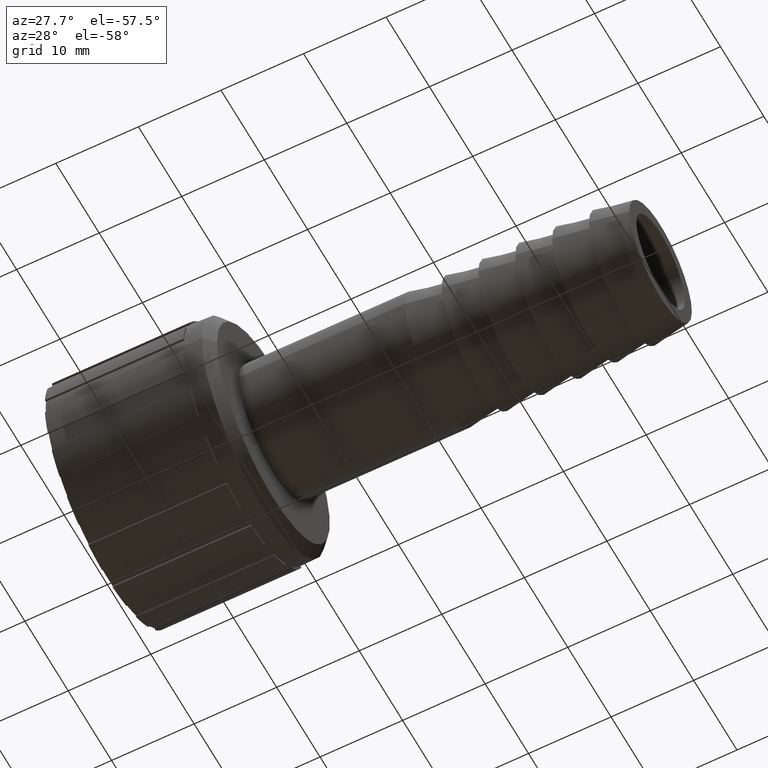
[diagram: clean part render]
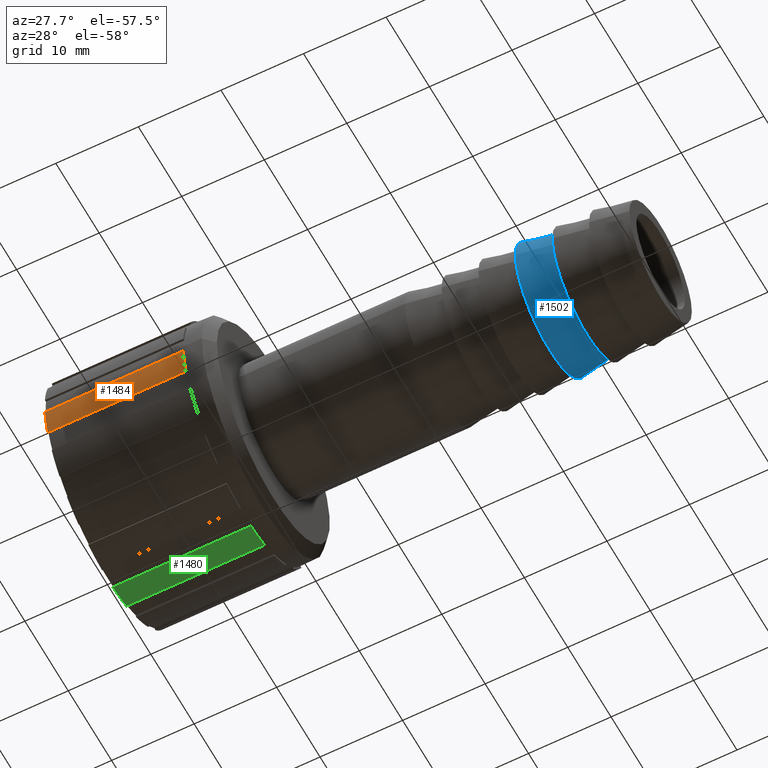
[diagram: same view with three faces highlighted in distinct colors, each labeled with its STEP entity id]
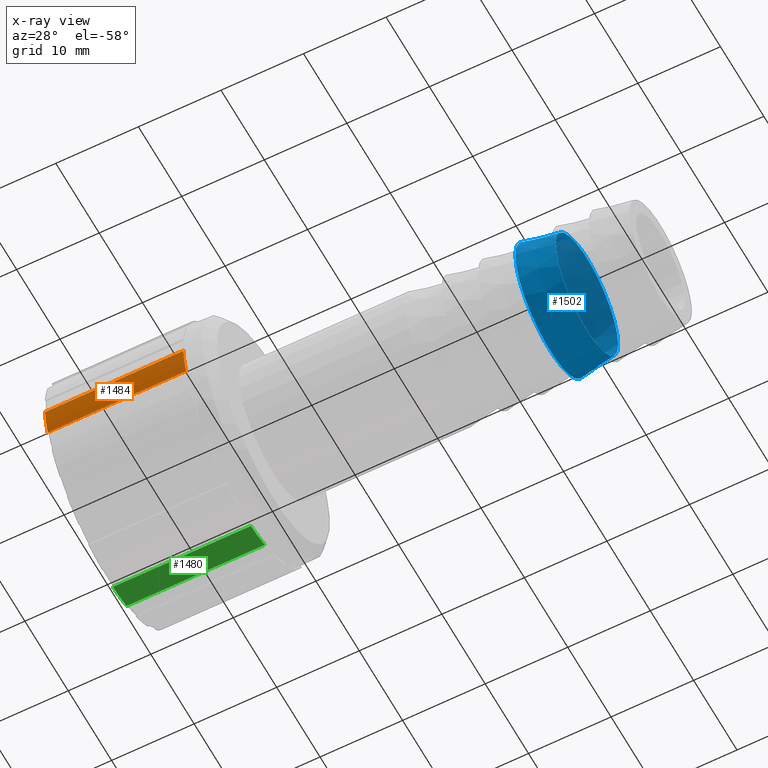
[diagram: x-ray of the same camera — body ghosted, the three highlighted faces saturated]
A machine part, auxiliary view with three faces highlighted in distinct colors.
The next image is the same camera in x-ray (body ghosted, the three faces saturated) — at least one of them is partly hidden behind the body in this view.
Their STEP definitions:

[orange] entity #1484 — the highlighted cylindrical surface (partial cylindrical patch) has radius 14.4702 mm, axis along (-1, 0, 0).
#33=CYLINDRICAL_SURFACE('',#1635,14.4702);
#87=CIRCLE('',#1568,14.4702);
#117=CIRCLE('',#1610,14.4702);
#203=FACE_OUTER_BOUND('',#288,.T.);
#288=EDGE_LOOP('',(#1240,#1241,#1242,#1243));
#362=LINE('',#2212,#490);
#368=LINE('',#2224,#496);
#490=VECTOR('',#1726,16.75);
#496=VECTOR('',#1734,16.75);
#617=VERTEX_POINT('',#2208);
#619=VERTEX_POINT('',#2211);
#622=VERTEX_POINT('',#2218);
#624=VERTEX_POINT('',#2222);
#765=EDGE_CURVE('',#619,#617,#362,.T.);
#771=EDGE_CURVE('',#622,#624,#368,.T.);
#883=EDGE_CURVE('',#622,#617,#87,.T.);
#914=EDGE_CURVE('',#624,#619,#117,.T.);
#1240=ORIENTED_EDGE('',*,*,#765,.T.);
#1241=ORIENTED_EDGE('',*,*,#883,.F.);
#1242=ORIENTED_EDGE('',*,*,#771,.T.);
#1243=ORIENTED_EDGE('',*,*,#914,.T.);
#1484=ADVANCED_FACE('',(#203),#33,.T.);
#1568=AXIS2_PLACEMENT_3D('',#2446,#1915,#1916);
#1610=AXIS2_PLACEMENT_3D('',#2492,#2000,#2001);
#1635=AXIS2_PLACEMENT_3D('',#2521,#2052,#2053);
#1726=DIRECTION('',(-1.,0.,0.));
#1734=DIRECTION('',(1.,0.,0.));
#1915=DIRECTION('center_axis',(-1.,0.,0.));
#1916=DIRECTION('ref_axis',(0.,0.,1.));
#2000=DIRECTION('center_axis',(-1.,0.,0.));
#2001=DIRECTION('ref_axis',(0.,0.,1.));
#2052=DIRECTION('center_axis',(-1.,0.,0.));
#2053=DIRECTION('ref_axis',(0.,-1.,0.));
#2208=CARTESIAN_POINT('',(0.,-14.4198687170688,-1.20585000000002));
#2211=CARTESIAN_POINT('',(16.75,-14.4198687170688,-1.20585000000002));
#2212=CARTESIAN_POINT('',(8.375,-14.4198687170688,-1.20585000000002));
#2218=CARTESIAN_POINT('',(0.,-13.7836803861171,-4.40418472062315));
#2222=CARTESIAN_POINT('',(16.75,-13.7836803861171,-4.40418472062315));
#2224=CARTESIAN_POINT('',(8.375,-13.7836803861171,-4.40418472062315));
#2446=CARTESIAN_POINT('Origin',(0.,0.,0.));
#2492=CARTESIAN_POINT('Origin',(16.75,0.,0.));
#2521=CARTESIAN_POINT('Origin',(8.375,0.,0.));

[blue] entity #1502 — the highlighted conical surface has half-angle 10 deg.
#18=CONICAL_SURFACE('',#1664,7.60620307641776,9.99999999999984);
#54=FACE_BOUND('',#318,.T.);
#137=CIRCLE('',#1663,7.21240615283553);
#138=CIRCLE('',#1665,8.);
#221=FACE_OUTER_BOUND('',#317,.T.);
#317=EDGE_LOOP('',(#1353));
#318=EDGE_LOOP('',(#1354));
#728=VERTEX_POINT('',#2562);
#729=VERTEX_POINT('',#2565);
#939=EDGE_CURVE('',#728,#728,#137,.T.);
#940=EDGE_CURVE('',#729,#729,#138,.T.);
#1353=ORIENTED_EDGE('',*,*,#939,.T.);
#1354=ORIENTED_EDGE('',*,*,#940,.F.);
#1502=ADVANCED_FACE('',(#221,#54),#18,.T.);
#1663=AXIS2_PLACEMENT_3D('',#2563,#2111,#2112);
#1664=AXIS2_PLACEMENT_3D('',#2564,#2113,#2114);
#1665=AXIS2_PLACEMENT_3D('',#2566,#2115,#2116);
#2111=DIRECTION('center_axis',(-1.,0.,0.));
#2112=DIRECTION('ref_axis',(0.,0.,1.));
#2113=DIRECTION('center_axis',(-1.,0.,0.));
#2114=DIRECTION('ref_axis',(0.,-1.,0.));
#2115=DIRECTION('center_axis',(-1.,0.,0.));
#2116=DIRECTION('ref_axis',(0.,0.,1.));
#2562=CARTESIAN_POINT('',(58.0666666666666,-7.21240615283553,0.));
#2563=CARTESIAN_POINT('Origin',(58.0666666666666,0.,0.));
#2564=CARTESIAN_POINT('Origin',(55.8333333333333,0.,0.));
#2565=CARTESIAN_POINT('',(53.5999999999999,-8.,0.));
#2566=CARTESIAN_POINT('Origin',(53.5999999999999,0.,0.));

[green] entity #1480 — the highlighted cylindrical surface (partial cylindrical patch) has radius 14.4702 mm, axis along (-1, 0, 0).
#29=CYLINDRICAL_SURFACE('',#1631,14.4702);
#79=CIRCLE('',#1560,14.4702);
#109=CIRCLE('',#1598,14.4702);
#199=FACE_OUTER_BOUND('',#284,.T.);
#284=EDGE_LOOP('',(#1224,#1225,#1226,#1227));
#394=LINE('',#2284,#522);
#400=LINE('',#2296,#528);
#522=VECTOR('',#1774,16.75);
#528=VECTOR('',#1782,16.75);
#649=VERTEX_POINT('',#2280);
#651=VERTEX_POINT('',#2283);
#654=VERTEX_POINT('',#2290);
#656=VERTEX_POINT('',#2294);
#797=EDGE_CURVE('',#651,#649,#394,.T.);
#803=EDGE_CURVE('',#654,#656,#400,.T.);
#875=EDGE_CURVE('',#654,#649,#79,.T.);
#906=EDGE_CURVE('',#656,#651,#109,.T.);
#1224=ORIENTED_EDGE('',*,*,#797,.T.);
#1225=ORIENTED_EDGE('',*,*,#875,.F.);
#1226=ORIENTED_EDGE('',*,*,#803,.T.);
#1227=ORIENTED_EDGE('',*,*,#906,.T.);
#1480=ADVANCED_FACE('',(#199),#29,.T.);
#1560=AXIS2_PLACEMENT_3D('',#2438,#1899,#1900);
#1598=AXIS2_PLACEMENT_3D('',#2480,#1976,#1977);
#1631=AXIS2_PLACEMENT_3D('',#2517,#2044,#2045);
#1774=DIRECTION('',(-1.,0.,0.));
#1782=DIRECTION('',(1.,0.,0.));
#1899=DIRECTION('center_axis',(-1.,0.,0.));
#1900=DIRECTION('ref_axis',(0.,0.,1.));
#1976=DIRECTION('center_axis',(-1.,0.,0.));
#1977=DIRECTION('ref_axis',(0.,0.,1.));
#2044=DIRECTION('center_axis',(-1.,0.,0.));
#2045=DIRECTION('ref_axis',(0.,-1.,0.));
#2280=CARTESIAN_POINT('',(0.,1.20585000000001,-14.4198687170688));
#2283=CARTESIAN_POINT('',(16.75,1.20585000000001,-14.4198687170688));
#2284=CARTESIAN_POINT('',(8.375,1.20585000000001,-14.4198687170688));
#2290=CARTESIAN_POINT('',(0.,4.40418472062315,-13.7836803861171));
#2294=CARTESIAN_POINT('',(16.75,4.40418472062315,-13.7836803861171));
#2296=CARTESIAN_POINT('',(8.375,4.40418472062315,-13.7836803861171));
#2438=CARTESIAN_POINT('Origin',(0.,0.,0.));
#2480=CARTESIAN_POINT('Origin',(16.75,0.,0.));
#2517=CARTESIAN_POINT('Origin',(8.375,0.,0.));